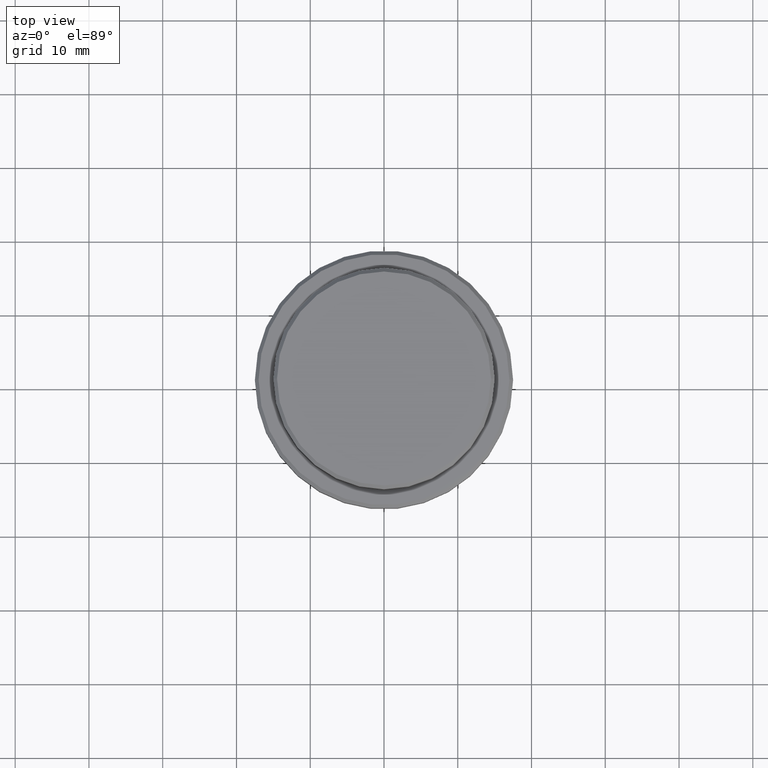
[diagram: clean part render]
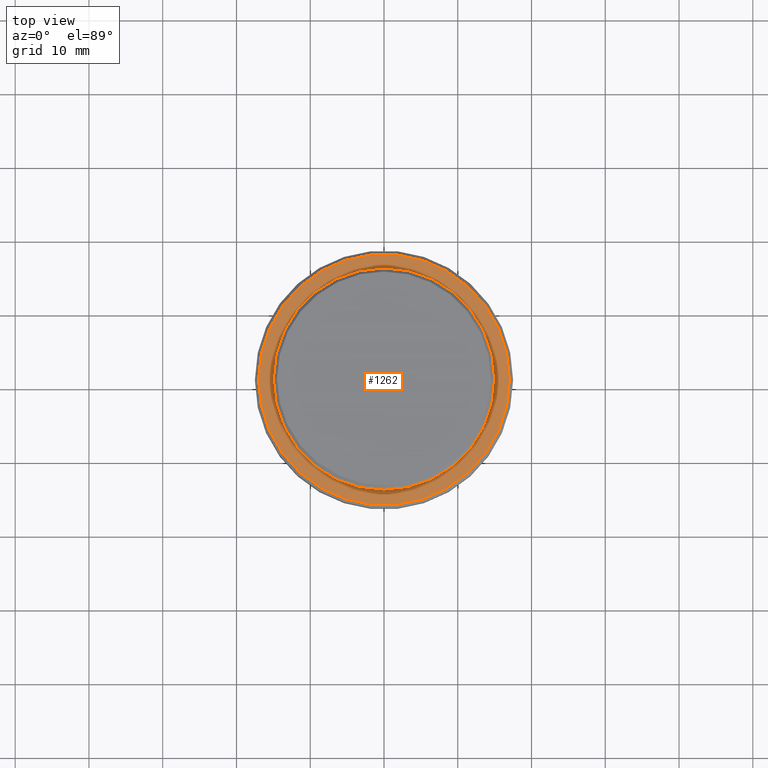
[diagram: same view with one face highlighted and labeled with its STEP entity id]
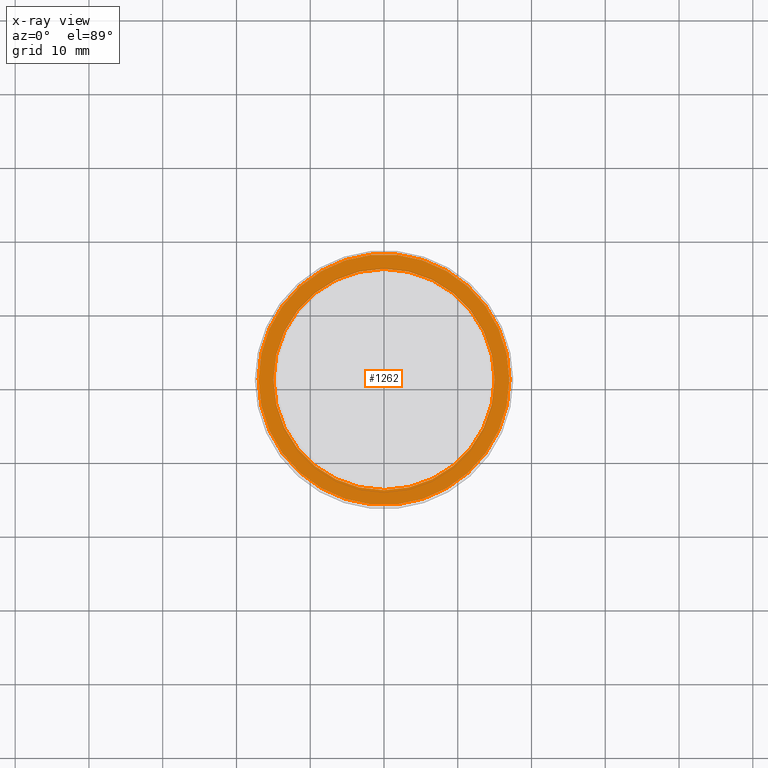
[diagram: x-ray of the same camera — body ghosted, the highlighted face saturated]
A machine part, top view. The second image highlights one B-rep face of the part: STEP entity #1262.
The next image is the same camera in x-ray: the body ghosted, the highlighted face saturated — about 0% of this face is hidden behind the body in this view.
In plain terms, the highlighted planar face has unit normal (0, -0, 1).
Its self-contained STEP definition (entity closure, byte-faithful):
#3 = FACE_OUTER_BOUND ( 'NONE', #575, .T. ) ;
#32 = CARTESIAN_POINT ( 'NONE',  ( 14.99999999999999289, 0.000000000000000000, -9.000000000000000000 ) ) ;
#74 = EDGE_LOOP ( 'NONE', ( #609, #288 ) ) ;
#97 = CARTESIAN_POINT ( 'NONE',  ( 0.000000000000000000, 0.000000000000000000, -9.000000000000000000 ) ) ;
#107 = EDGE_CURVE ( 'NONE', #881, #786, #1209, .T. ) ;
#210 = ORIENTED_EDGE ( 'NONE', *, *, #107, .T. ) ;
#234 = AXIS2_PLACEMENT_3D ( 'NONE', #665, #360, #1114 ) ;
#286 = DIRECTION ( 'NONE',  ( 1.000000000000000000, 0.000000000000000000, 0.000000000000000000 ) ) ;
#288 = ORIENTED_EDGE ( 'NONE', *, *, #801, .T. ) ;
#314 = DIRECTION ( 'NONE',  ( 1.000000000000000000, 0.000000000000000000, 0.000000000000000000 ) ) ;
#327 = CARTESIAN_POINT ( 'NONE',  ( 0.000000000000000000, 0.000000000000000000, -9.000000000000000000 ) ) ;
#360 = DIRECTION ( 'NONE',  ( 0.000000000000000000, -0.000000000000000000, 1.000000000000000000 ) ) ;
#373 = ORIENTED_EDGE ( 'NONE', *, *, #689, .T. ) ;
#455 = FACE_BOUND ( 'NONE', #74, .T. ) ;
#467 = CARTESIAN_POINT ( 'NONE',  ( 0.000000000000000000, 0.000000000000000000, -9.000000000000000000 ) ) ;
#550 = DIRECTION ( 'NONE',  ( 0.000000000000000000, 0.000000000000000000, -1.000000000000000000 ) ) ;
#565 = CARTESIAN_POINT ( 'NONE',  ( -17.00000000000001421, 0.000000000000000000, -9.000000000000000000 ) ) ;
#575 = EDGE_LOOP ( 'NONE', ( #210, #373 ) ) ;
#587 = EDGE_CURVE ( 'NONE', #1068, #905, #1397, .T. ) ;
#609 = ORIENTED_EDGE ( 'NONE', *, *, #587, .T. ) ;
#622 = DIRECTION ( 'NONE',  ( 0.000000000000000000, 0.000000000000000000, -1.000000000000000000 ) ) ;
#653 = DIRECTION ( 'NONE',  ( -0.000000000000000000, -0.000000000000000000, 1.000000000000000000 ) ) ;
#665 = CARTESIAN_POINT ( 'NONE',  ( 0.000000000000000000, 14.49999999999999467, -9.000000000000000000 ) ) ;
#689 = EDGE_CURVE ( 'NONE', #786, #881, #740, .T. ) ;
#740 = CIRCLE ( 'NONE', #888, 17.00000000000001421 ) ;
#786 = VERTEX_POINT ( 'NONE', #1263 ) ;
#801 = EDGE_CURVE ( 'NONE', #905, #1068, #969, .T. ) ;
#812 = CARTESIAN_POINT ( 'NONE',  ( -14.99999999999999289, 1.836970198721028800E-15, -9.000000000000000000 ) ) ;
#822 = CARTESIAN_POINT ( 'NONE',  ( 0.000000000000000000, 0.000000000000000000, -9.000000000000000000 ) ) ;
#881 = VERTEX_POINT ( 'NONE', #565 ) ;
#882 = DIRECTION ( 'NONE',  ( -0.000000000000000000, -0.000000000000000000, 1.000000000000000000 ) ) ;
#888 = AXIS2_PLACEMENT_3D ( 'NONE', #467, #882, #286 ) ;
#905 = VERTEX_POINT ( 'NONE', #812 ) ;
#969 = CIRCLE ( 'NONE', #1185, 14.99999999999999289 ) ;
#1068 = VERTEX_POINT ( 'NONE', #32 ) ;
#1072 = DIRECTION ( 'NONE',  ( 1.000000000000000000, 0.000000000000000000, 0.000000000000000000 ) ) ;
#1089 = PLANE ( 'NONE',  #234 ) ;
#1114 = DIRECTION ( 'NONE',  ( 1.000000000000000000, 0.000000000000000000, 0.000000000000000000 ) ) ;
#1185 = AXIS2_PLACEMENT_3D ( 'NONE', #822, #622, #314 ) ;
#1209 = CIRCLE ( 'NONE', #1401, 17.00000000000001421 ) ;
#1239 = AXIS2_PLACEMENT_3D ( 'NONE', #97, #550, #1409 ) ;
#1262 = ADVANCED_FACE ( 'NONE', ( #3, #455 ), #1089, .T. ) ;
#1263 = CARTESIAN_POINT ( 'NONE',  ( 17.00000000000001421, 2.112515728529185250E-15, -9.000000000000000000 ) ) ;
#1397 = CIRCLE ( 'NONE', #1239, 14.99999999999999289 ) ;
#1401 = AXIS2_PLACEMENT_3D ( 'NONE', #327, #653, #1072 ) ;
#1409 = DIRECTION ( 'NONE',  ( 1.000000000000000000, 0.000000000000000000, 0.000000000000000000 ) ) ;